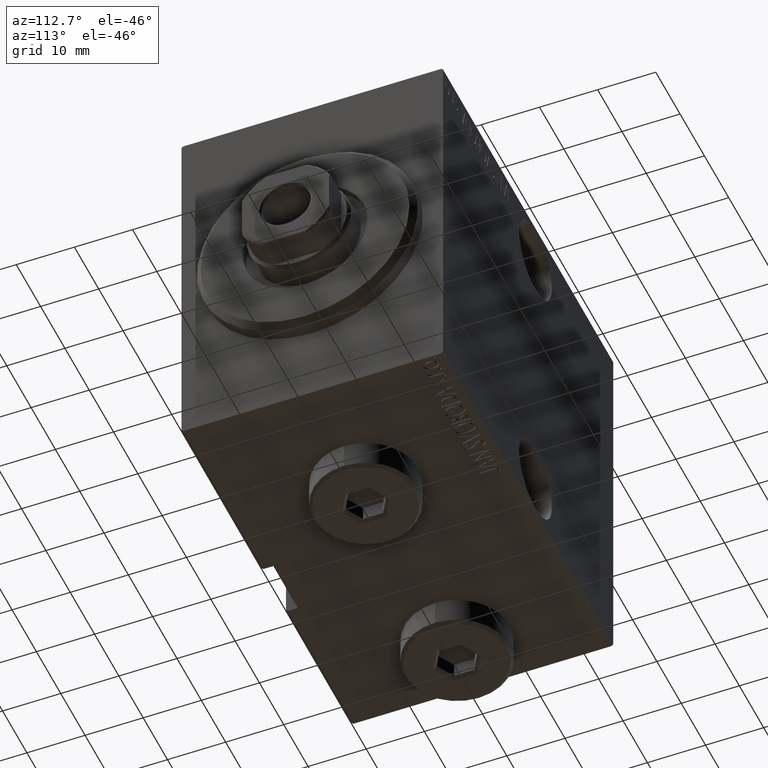
[diagram: clean part render]
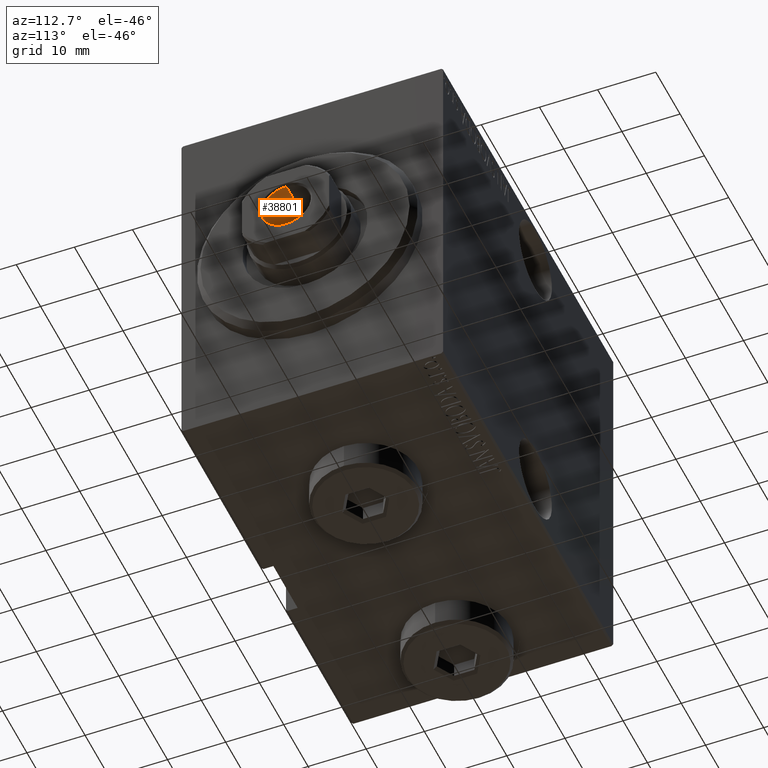
[diagram: same view with one face highlighted and labeled with its STEP entity id]
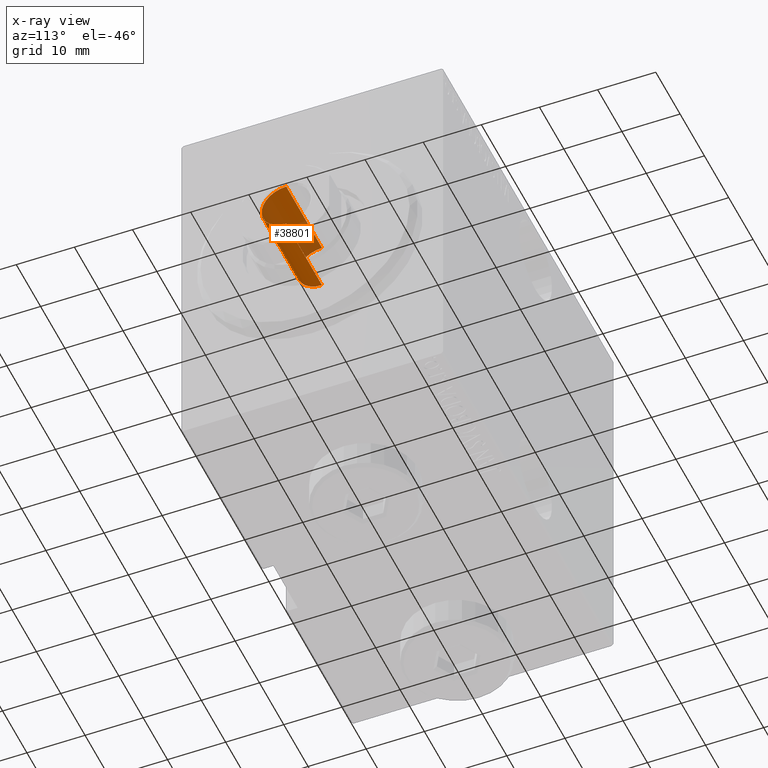
[diagram: x-ray of the same camera — body ghosted, the highlighted face saturated]
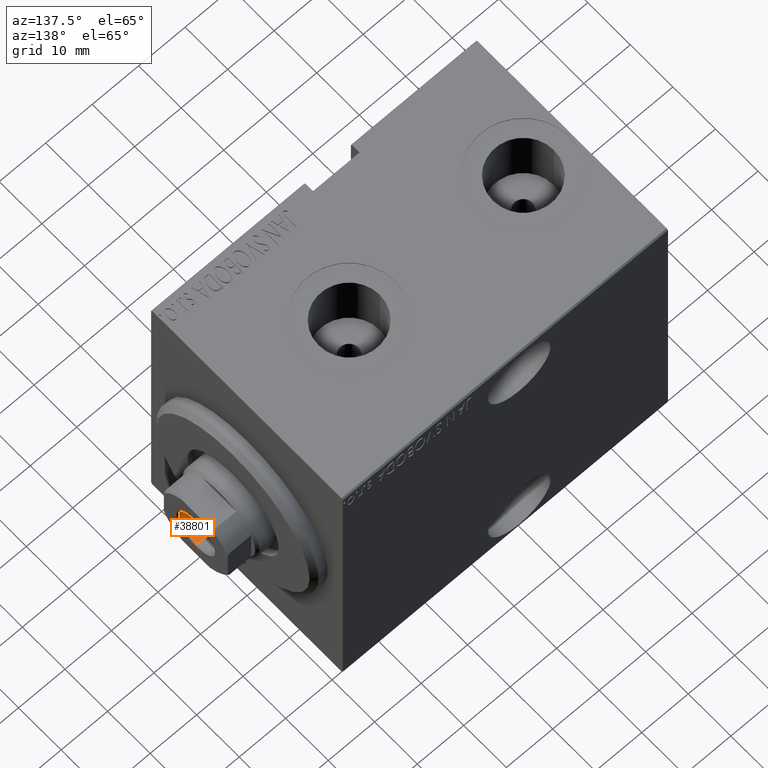
[diagram: same view with one face highlighted and labeled with its STEP entity id]
A machine part, auxiliary view. The second image highlights one B-rep face of the part: STEP entity #38801.
The next image is the same camera in x-ray: the body ghosted, the highlighted face saturated — about 20% of this face is hidden behind the body in this view.
A second angle (auxiliary view) of the same face is appended — the face is thin or edge-on in the first view.
In plain terms, the highlighted cylindrical surface (edge-blend (fillet) strip) has radius 4.25 mm, axis along (1, 0, -0).
Its self-contained STEP definition (entity closure, byte-faithful):
#23 = VERTEX_POINT ( 'NONE', #27943 ) ;
#804 = CARTESIAN_POINT ( 'NONE',  ( 0.000000000000000000, 0.000000000000000000, 75.00000000000001421 ) ) ;
#4012 = CIRCLE ( 'NONE', #29710, 4.249999999999997335 ) ;
#4876 = LINE ( 'NONE', #18048, #13271 ) ;
#8259 = CARTESIAN_POINT ( 'NONE',  ( -4.249999999999996447, 5.204748896376247741E-16, 60.00000000000001421 ) ) ;
#11342 = EDGE_CURVE ( 'NONE', #25139, #16791, #32372, .T. ) ;
#11408 = EDGE_LOOP ( 'NONE', ( #15938, #28582, #43511, #15334 ) ) ;
#12158 = CARTESIAN_POINT ( 'NONE',  ( 4.249999999999997335, 0.000000000000000000, 75.00000000000001421 ) ) ;
#12715 = CARTESIAN_POINT ( 'NONE',  ( 0.000000000000000000, 0.000000000000000000, 74.70000000000001705 ) ) ;
#13271 = VECTOR ( 'NONE', #32556, 1000.000000000000000 ) ;
#13331 = CARTESIAN_POINT ( 'NONE',  ( 4.249999999999996447, 0.000000000000000000, 60.00000000000001421 ) ) ;
#14623 = DIRECTION ( 'NONE',  ( 1.000000000000000000, 0.000000000000000000, 0.000000000000000000 ) ) ;
#15334 = ORIENTED_EDGE ( 'NONE', *, *, #36007, .F. ) ;
#15938 = ORIENTED_EDGE ( 'NONE', *, *, #11342, .F. ) ;
#16791 = VERTEX_POINT ( 'NONE', #13331 ) ;
#18048 = CARTESIAN_POINT ( 'NONE',  ( -4.249999999999997335, 5.204748896376248727E-16, 75.00000000000001421 ) ) ;
#20420 = AXIS2_PLACEMENT_3D ( 'NONE', #804, #20876, #14623 ) ;
#20876 = DIRECTION ( 'NONE',  ( -0.000000000000000000, -0.000000000000000000, 1.000000000000000000 ) ) ;
#21625 = VERTEX_POINT ( 'NONE', #22526 ) ;
#22406 = EDGE_CURVE ( 'NONE', #25139, #21625, #4876, .T. ) ;
#22526 = CARTESIAN_POINT ( 'NONE',  ( -4.249999999999997335, 5.204748896376248727E-16, 74.70000000000001705 ) ) ;
#24222 = CYLINDRICAL_SURFACE ( 'NONE', #20420, 4.249999999999997335 ) ;
#24670 = FACE_OUTER_BOUND ( 'NONE', #11408, .T. ) ;
#25139 = VERTEX_POINT ( 'NONE', #8259 ) ;
#25292 = DIRECTION ( 'NONE',  ( -0.000000000000000000, -0.000000000000000000, 1.000000000000000000 ) ) ;
#26326 = DIRECTION ( 'NONE',  ( 0.000000000000000000, 0.000000000000000000, 1.000000000000000000 ) ) ;
#26768 = DIRECTION ( 'NONE',  ( 1.000000000000000000, 0.000000000000000000, 0.000000000000000000 ) ) ;
#27943 = CARTESIAN_POINT ( 'NONE',  ( 4.249999999999997335, 0.000000000000000000, 74.70000000000001705 ) ) ;
#28582 = ORIENTED_EDGE ( 'NONE', *, *, #22406, .T. ) ;
#29710 = AXIS2_PLACEMENT_3D ( 'NONE', #12715, #26326, #26768 ) ;
#31569 = DIRECTION ( 'NONE',  ( 1.000000000000000000, 0.000000000000000000, 0.000000000000000000 ) ) ;
#31781 = VECTOR ( 'NONE', #39641, 1000.000000000000000 ) ;
#32372 = CIRCLE ( 'NONE', #43055, 4.249999999999996447 ) ;
#32556 = DIRECTION ( 'NONE',  ( -0.000000000000000000, -0.000000000000000000, 1.000000000000000000 ) ) ;
#36007 = EDGE_CURVE ( 'NONE', #16791, #23, #41900, .T. ) ;
#38496 = CARTESIAN_POINT ( 'NONE',  ( 0.000000000000000000, 0.000000000000000000, 60.00000000000001421 ) ) ;
#38801 = ADVANCED_FACE ( 'NONE', ( #24670 ), #24222, .F. ) ;
#39641 = DIRECTION ( 'NONE',  ( -0.000000000000000000, -0.000000000000000000, 1.000000000000000000 ) ) ;
#41900 = LINE ( 'NONE', #12158, #31781 ) ;
#43055 = AXIS2_PLACEMENT_3D ( 'NONE', #38496, #25292, #31569 ) ;
#43251 = EDGE_CURVE ( 'NONE', #21625, #23, #4012, .T. ) ;
#43511 = ORIENTED_EDGE ( 'NONE', *, *, #43251, .T. ) ;